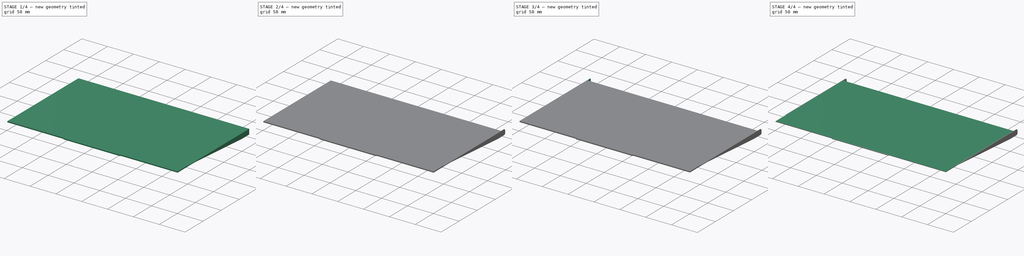
[diagram: build sequence overview — one tinted view per stage of 4, left to right]
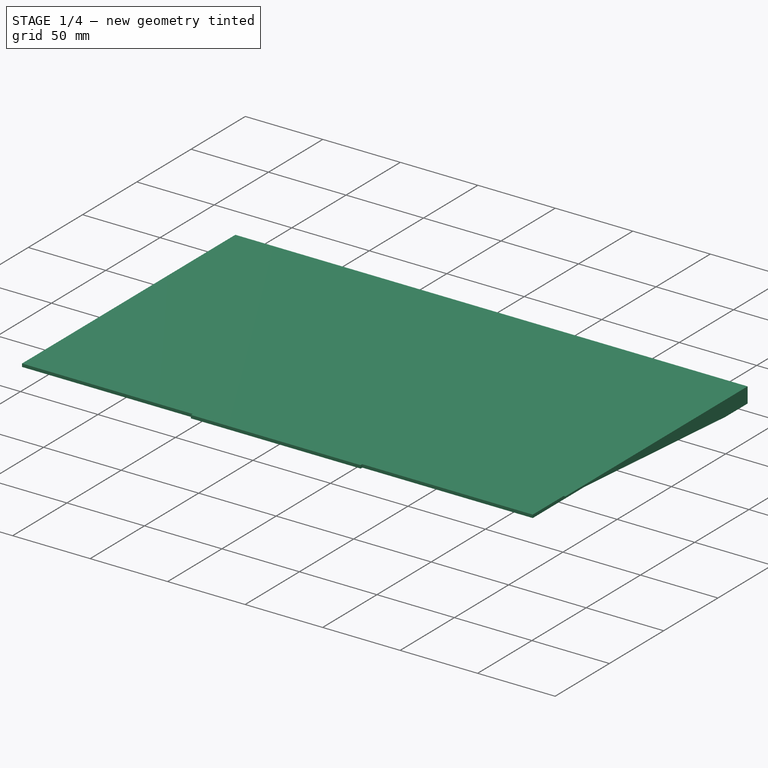
[diagram: stage 1 of 4 — iso view after this stage's code; geometry added in this stage tinted green]
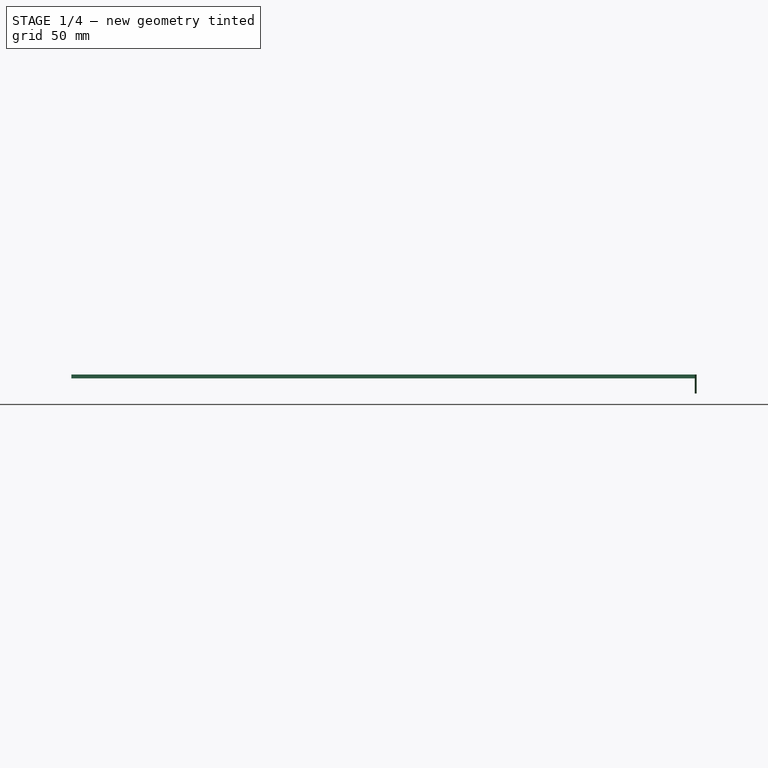
[diagram: stage 1 of 4 — front view after this stage's code; geometry added in this stage tinted green]
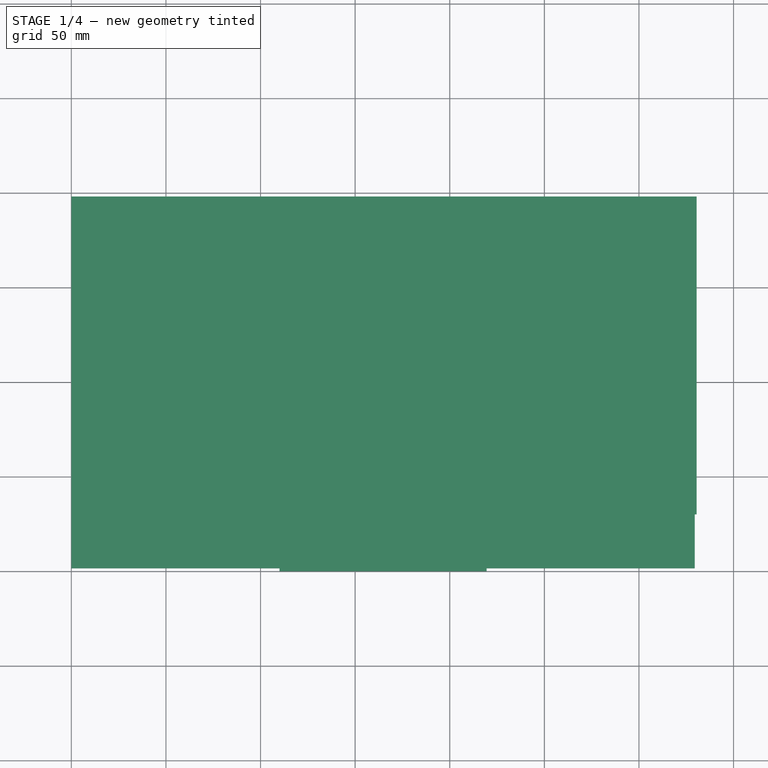
[diagram: stage 1 of 4 — top view after this stage's code; geometry added in this stage tinted green]
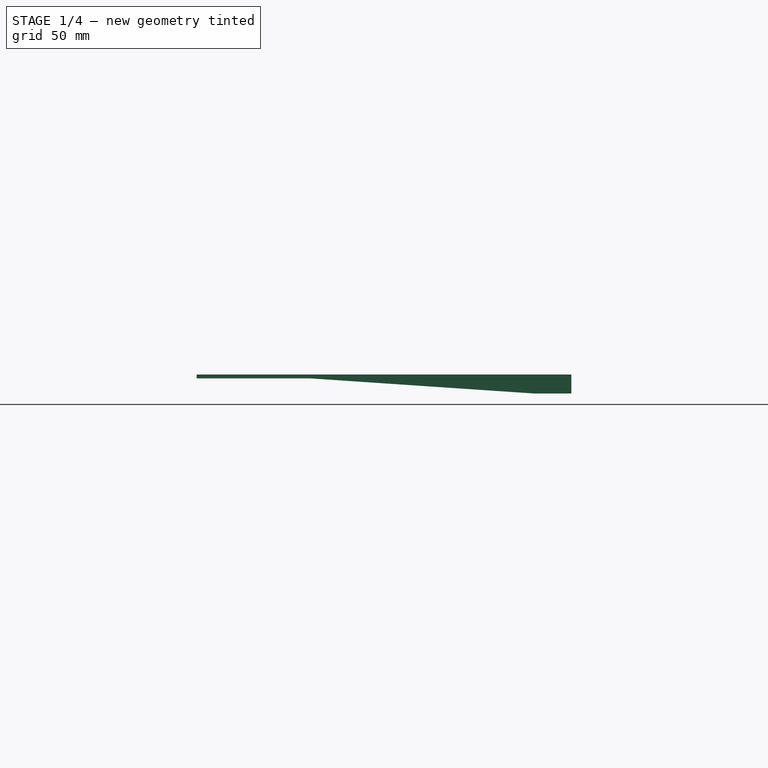
[diagram: stage 1 of 4 — right view after this stage's code; geometry added in this stage tinted green]
FCSTD DOCUMENT  (FreeCAD 0.18.4R)
Label: monitor_cradle_cover
License: All rights reserved
LicenseURL: http://en.wikipedia.org/wiki/All_rights_reserved
objects: Sketcher::SketchObject×8, PartDesign::Pad×5, PartDesign::Fillet×4, PartDesign::Pocket×2, PartDesign::Body×1
note: 27 computed .brp shape members not serialized (recipe doc carries the construction recipe); baked Part::Feature solids carry a one-line shape summary decoded from their .brp

FEATURE [Sketcher::SketchObject] Sketch
  MapMode = 5
  Support = -> [XY_Plane]
  sketch-geometry (4):
    g0: LineSegment StartX=0 StartY=0 StartZ=0 EndX=329.5 EndY=0 EndZ=0
    g1: LineSegment StartX=329.5 StartY=0 StartZ=0 EndX=329.5 EndY=198 EndZ=0
    g2: LineSegment StartX=329.5 StartY=198 StartZ=0 EndX=0 EndY=198 EndZ=0
    g3: LineSegment StartX=0 StartY=198 StartZ=0 EndX=0 EndY=0 EndZ=0
  constraints (11):
    c: Coincident(g0,g1)
    c: Coincident(g1,g2)
    c: Coincident(g2,g3)
    c: Coincident(g3,g0)
    c: Horizontal(g0)
    c: Horizontal(g2)
    c: Vertical(g1)
    c: Vertical(g3)
    c: DistanceX(g2,g2) = 329.5
    c: DistanceY(g3,g3) = 198
    c: Coincident(g0,g-1)
FEATURE [PartDesign::Pad] Pad
  Length = 2
  Length2 = 100
  Profile = -> Sketch
  Type = 0
FEATURE [Sketcher::SketchObject] Sketch001
  MapMode = 5
  Placement = pos=(329.5,0,0) rot=(0.57735,0.57735,0.57735;2.0944rad)
  Support = -> [Pad]
FEATURE [Sketcher::SketchObject] Sketch002
  ExternalGeometry = -> [Pad]
  MapMode = 5
  Placement = pos=(0,0,2) rot=(0,0,1;0rad)
  Support = -> [Pad]
  sketch-geometry (8):
    g0: LineSegment StartX=0 StartY=1.5 StartZ=0 EndX=110 EndY=1.5 EndZ=0
    g1: LineSegment StartX=110 StartY=1.5 StartZ=0 EndX=110 EndY=0 EndZ=0
    g2: LineSegment StartX=110 StartY=0 StartZ=0 EndX=0 EndY=0 EndZ=0
    g3: LineSegment StartX=0 StartY=0 StartZ=0 EndX=0 EndY=1.5 EndZ=0
    g4: LineSegment StartX=219.5 StartY=1.5 StartZ=0 EndX=329.5 EndY=1.5 EndZ=0
    g5: LineSegment StartX=329.5 StartY=1.5 StartZ=0 EndX=329.5 EndY=0 EndZ=0
    g6: LineSegment StartX=329.5 StartY=0 StartZ=0 EndX=219.5 EndY=0 EndZ=0
    g7: LineSegment StartX=219.5 StartY=0 StartZ=0 EndX=219.5 EndY=1.5 EndZ=0
  constraints (22):
    c: Coincident(g0,g1)
    c: Coincident(g1,g2)
    c: Coincident(g2,g3)
    c: Coincident(g3,g0)
    c: Horizontal(g0)
    c: Horizontal(g2)
    c: Vertical(g1)
    c: Vertical(g3)
    c: DistanceX(g0,g0) = 110
    c: DistanceY(g3,g3) = 1.5
    c: Coincident(g2,g-1)
    c: Coincident(g4,g5)
    c: Coincident(g5,g6)
    c: Coincident(g6,g7)
    c: Coincident(g7,g4)
    c: Horizontal(g4)
    c: Horizontal(g6)
    c: Vertical(g5)
    c: Vertical(g7)
    c: DistanceX(g4,g4) = 110
    c: DistanceY(g7,g7) = 1.5
    c: Coincident(g5,g-4)
FEATURE [PartDesign::Pocket] Pocket
  BaseFeature = -> Pad
  Length = 5
  Length2 = 100
  Profile = -> Sketch002
  Type = 1
FEATURE [Sketcher::SketchObject] Sketch003  label="Right Side"
  ExternalGeometry = -> [Pocket]
  MapMode = 5
  Placement = pos=(329.5,0,0) rot=(0.57735,0.57735,0.57735;2.0944rad)
  Support = -> [Pocket]
  sketch-geometry (4):
    g0: LineSegment StartX=198 StartY=2 StartZ=0 EndX=198 EndY=-8 EndZ=0
    g1: LineSegment StartX=198 StartY=-8 StartZ=0 EndX=178 EndY=-8 EndZ=0
    g2: LineSegment StartX=198 StartY=2 StartZ=0 EndX=30 EndY=2 EndZ=0
    g3: LineSegment StartX=30 StartY=2 StartZ=0 EndX=178 EndY=-8 EndZ=0
  constraints (11):
    c: Coincident(g0,g1)
    c: Horizontal(g1)
    c: Coincident(g2,g3)
    c: Horizontal(g2)
    c: Distance(g2) = 168
    c: Coincident(g3,g1)
    c: Distance(g0) = 10
    c: Distance(g1) = 20
    c: Coincident(g2,g0)
    c: Coincident(g0,g-4)
    c: Perpendicular(g1,g0)
FEATURE [PartDesign::Pad] Pad001
  BaseFeature = -> Pocket
  Length = 1
  Length2 = 100
  Profile = -> Sketch003
  Type = 0
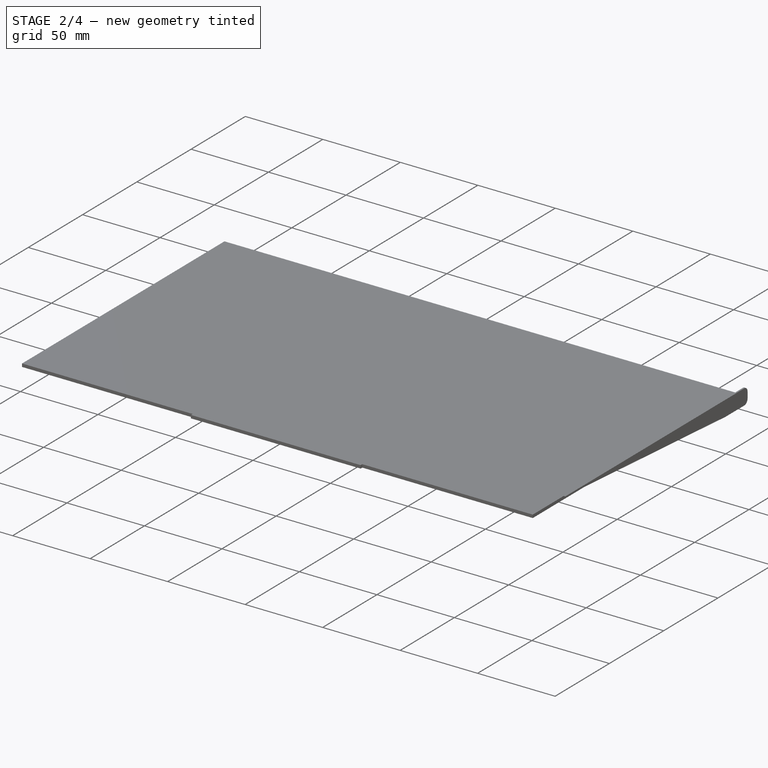
[diagram: stage 2 of 4 — iso view after this stage's code; geometry added in this stage tinted green]
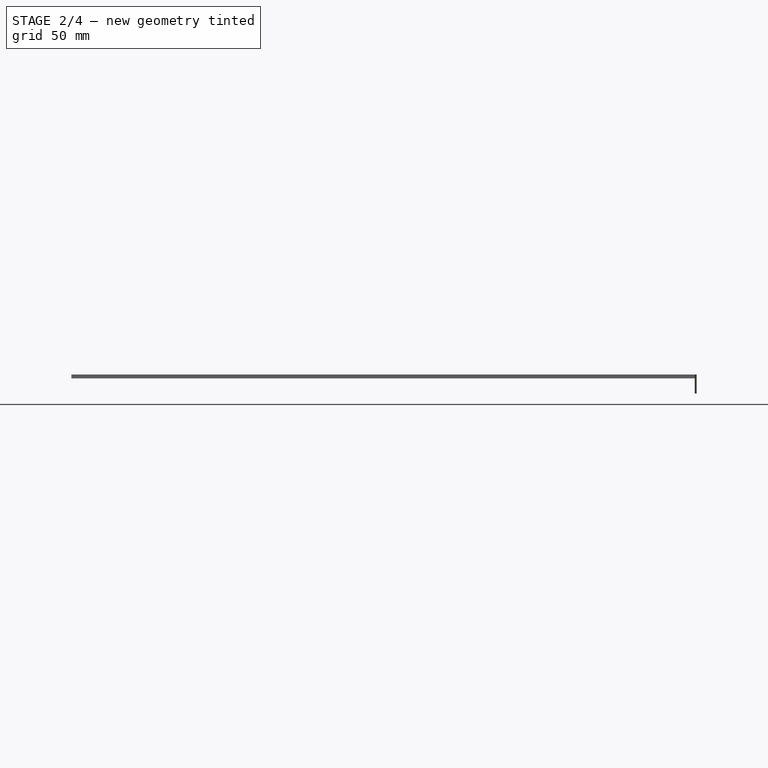
[diagram: stage 2 of 4 — front view after this stage's code; geometry added in this stage tinted green]
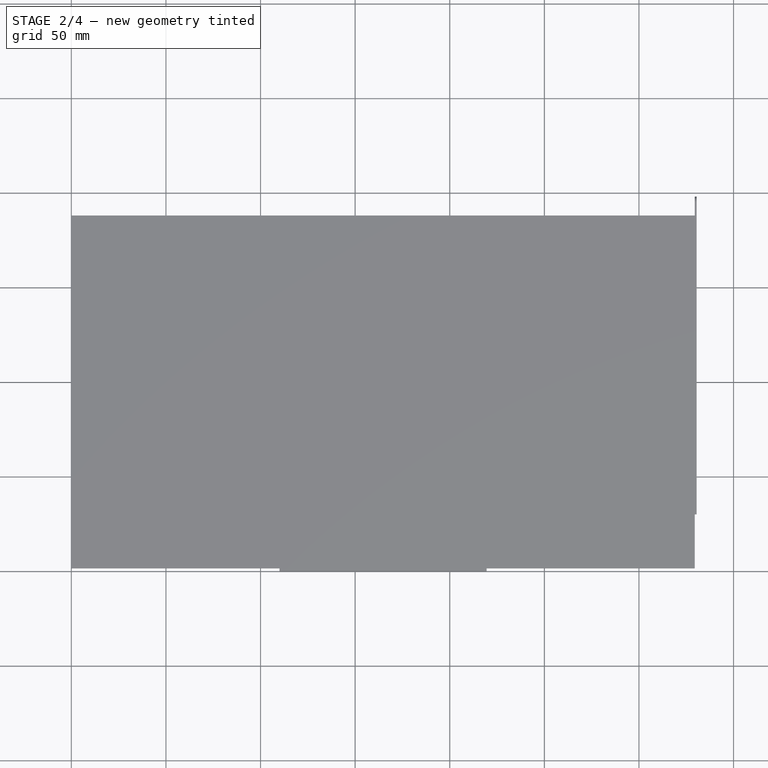
[diagram: stage 2 of 4 — top view after this stage's code; geometry added in this stage tinted green]
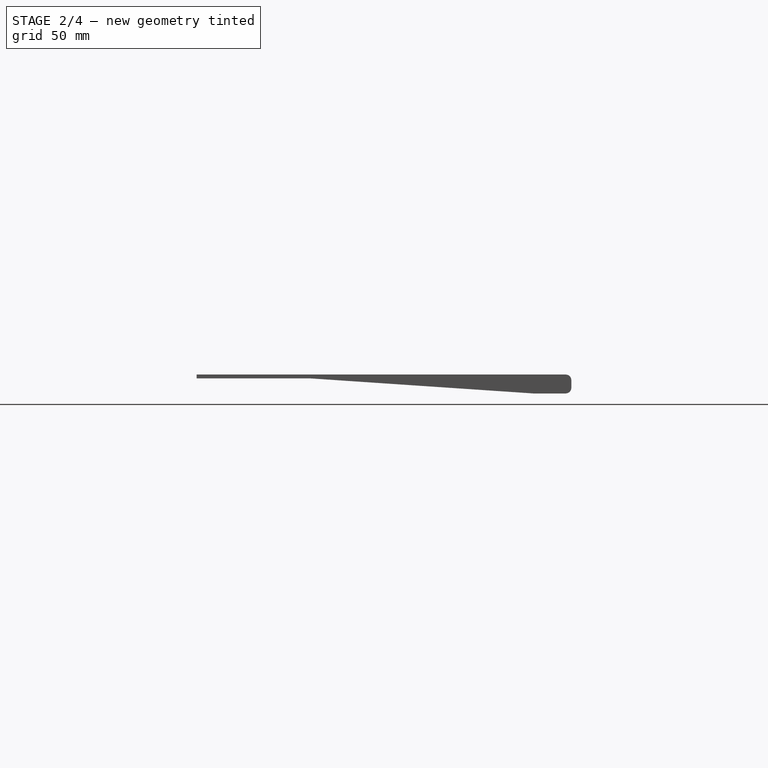
[diagram: stage 2 of 4 — right view after this stage's code; geometry added in this stage tinted green]
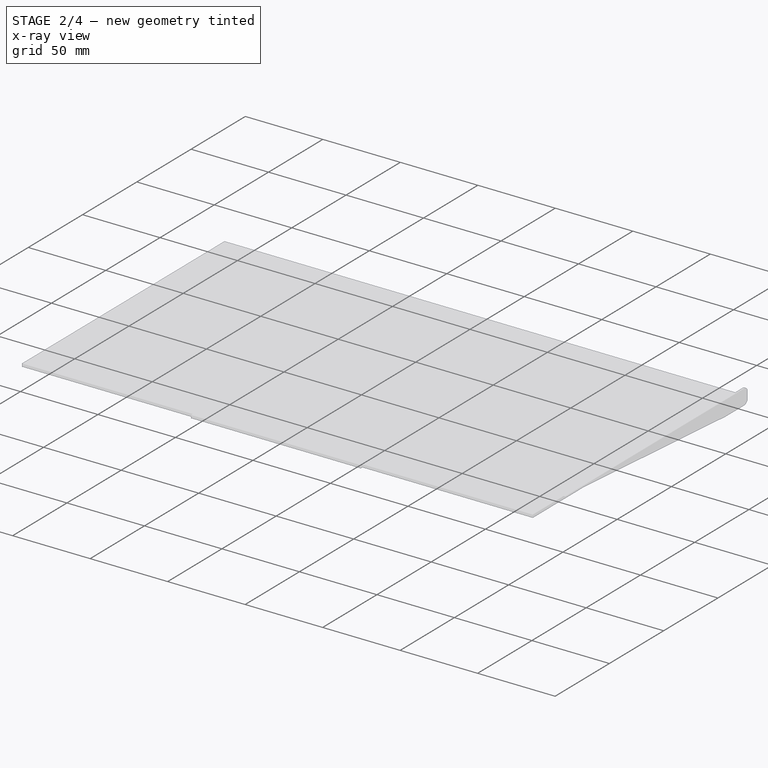
[diagram: stage 2 of 4 — x-ray composite at the iso view; earlier geometry ghosted, this stage's added geometry solid]
FEATURE [PartDesign::Fillet] Fillet
  Base = -> Pad001 [Edge34]
  BaseFeature = -> Pad001
  Radius = 3
FEATURE [Sketcher::SketchObject] Sketch004
  ExternalGeometry = -> [Fillet]
  MapMode = 5
  Placement = pos=(0,0,2) rot=(0,0,1;0rad)
  Support = -> [Fillet]
  sketch-geometry (4):
    g0: LineSegment StartX=0 StartY=198 StartZ=0 EndX=329.5 EndY=198 EndZ=0
    g1: LineSegment StartX=329.5 StartY=198 StartZ=0 EndX=329.5 EndY=188 EndZ=0
    g2: LineSegment StartX=329.5 StartY=188 StartZ=0 EndX=0 EndY=188 EndZ=0
    g3: LineSegment StartX=0 StartY=188 StartZ=0 EndX=0 EndY=198 EndZ=0
  constraints (11):
    c: Coincident(g0,g1)
    c: Coincident(g1,g2)
    c: Coincident(g2,g3)
    c: Coincident(g3,g0)
    c: Horizontal(g0)
    c: Horizontal(g2)
    c: Vertical(g1)
    c: Vertical(g3)
    c: Distance(g3) = 10
    c: Coincident(g0,g-4)
    c: Distance(g0) = 329.5
FEATURE [PartDesign::Pocket] Pocket001
  BaseFeature = -> Fillet
  Length = 5
  Length2 = 100
  Profile = -> Sketch004
  Type = 1
FEATURE [PartDesign::Fillet] Fillet001
  Base = -> Pocket001 [Edge11]
  BaseFeature = -> Pocket001
  Radius = 3
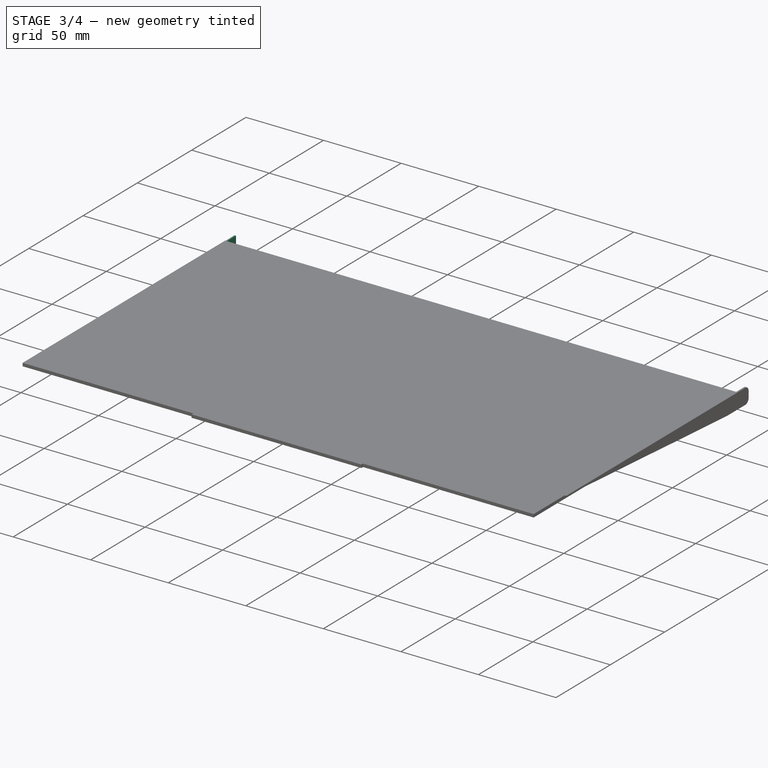
[diagram: stage 3 of 4 — iso view after this stage's code; geometry added in this stage tinted green]
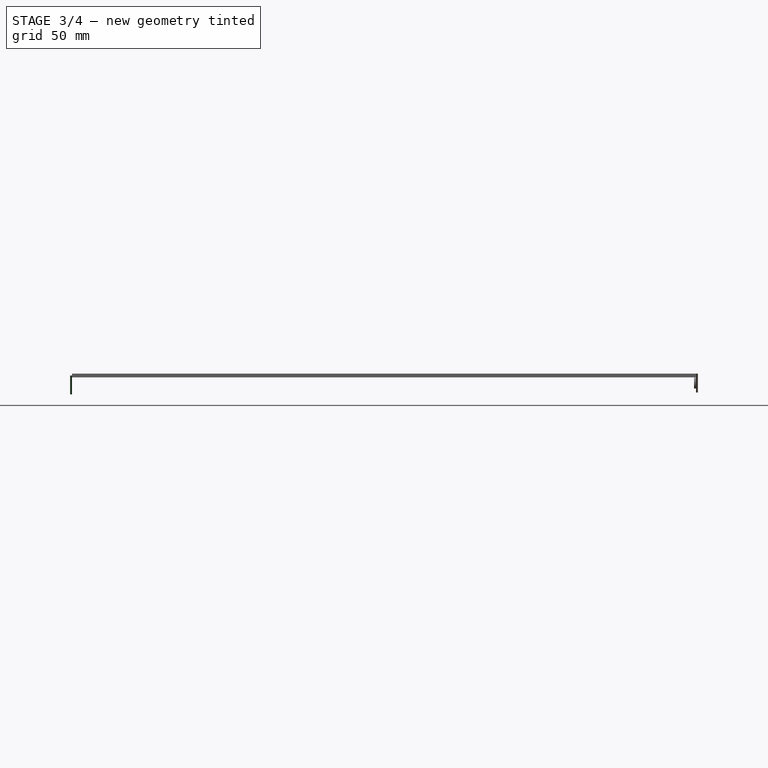
[diagram: stage 3 of 4 — front view after this stage's code; geometry added in this stage tinted green]
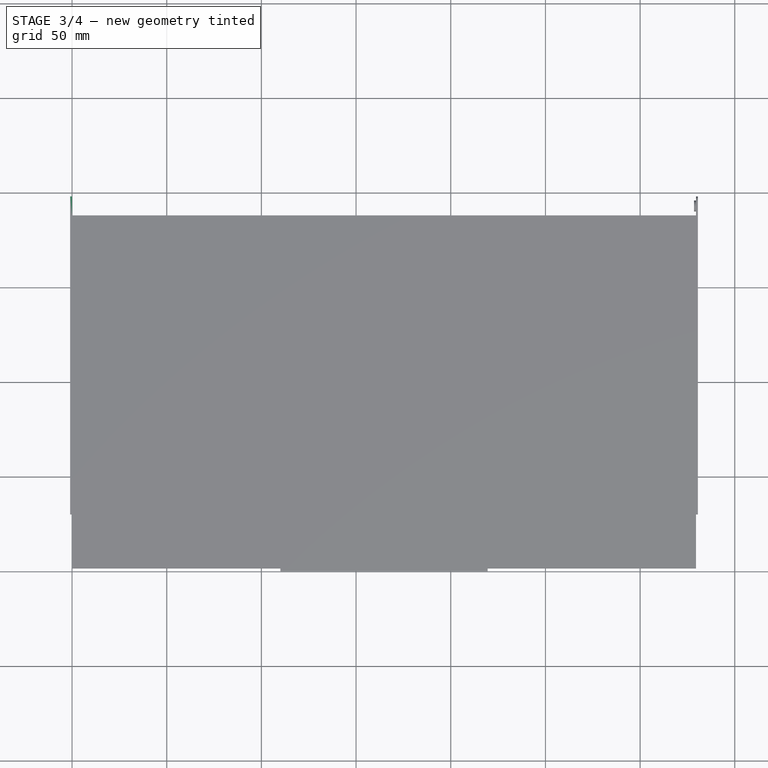
[diagram: stage 3 of 4 — top view after this stage's code; geometry added in this stage tinted green]
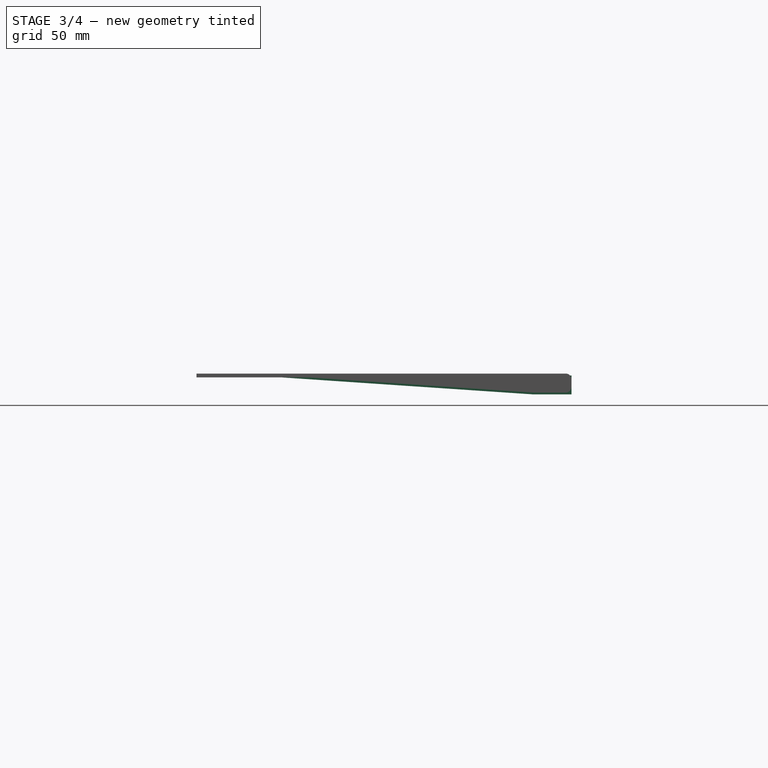
[diagram: stage 3 of 4 — right view after this stage's code; geometry added in this stage tinted green]
FEATURE [Sketcher::SketchObject] Sketch005
  ExternalGeometry = -> [Fillet001]
  MapMode = 5
  Placement = pos=(329.5,0,0) rot=(0.57735,-0.57735,-0.57735;2.0944rad)
  Support = -> [Fillet001]
  sketch-geometry (1):
    g0: Circle CenterX=-193 CenterY=-3 CenterZ=0 NormalX=0 NormalY=0 NormalZ=1 AngleXU=0 Radius=2.9
  constraints (3):
    c: Radius(g0) = 2.9
    c: DistanceY(g0,g-3) = 5
    c: DistanceX(g-6,g0) = 5
FEATURE [PartDesign::Pad] Pad002
  BaseFeature = -> Fillet001
  Length = 1
  Length2 = 100
  Profile = -> Sketch005
  Type = 0
FEATURE [Sketcher::SketchObject] CopyMirroredSketch  label="Left Side"
  Placement = pos=(0,0,0) rot=(0.57735,-0.57735,-0.57735;2.0944rad)
  sketch-geometry (4):
    g0: LineSegment StartX=-198 StartY=1 StartZ=0 EndX=-198 EndY=-9 EndZ=0
    g1: LineSegment StartX=-198 StartY=-9 StartZ=0 EndX=-178 EndY=-9 EndZ=0
    g2: LineSegment StartX=-198 StartY=1 StartZ=0 EndX=-30 EndY=1 EndZ=0
    g3: LineSegment StartX=-30 StartY=1 StartZ=0 EndX=-178 EndY=-9 EndZ=0
  constraints (10):
    c: Coincident(g0,g1)
    c: Horizontal(g1)
    c: Coincident(g2,g3)
    c: Horizontal(g2)
    c: Distance(g2) = 168
    c: Coincident(g3,g1)
    c: Distance(g0) = 10
    c: Distance(g1) = 20
    c: Coincident(g2,g0)
    c: Perpendicular(g1,g0)
FEATURE [PartDesign::Pad] Pad003
  BaseFeature = -> Pad002
  Length = 1
  Length2 = 100
  Profile = -> CopyMirroredSketch
  Type = 0
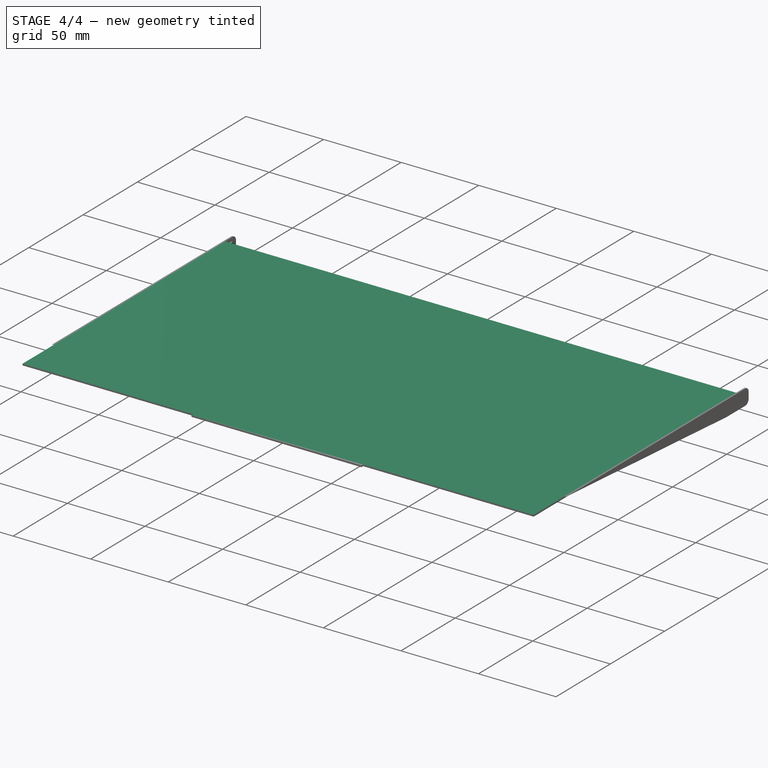
[diagram: stage 4 of 4 — iso view after this stage's code; geometry added in this stage tinted green]
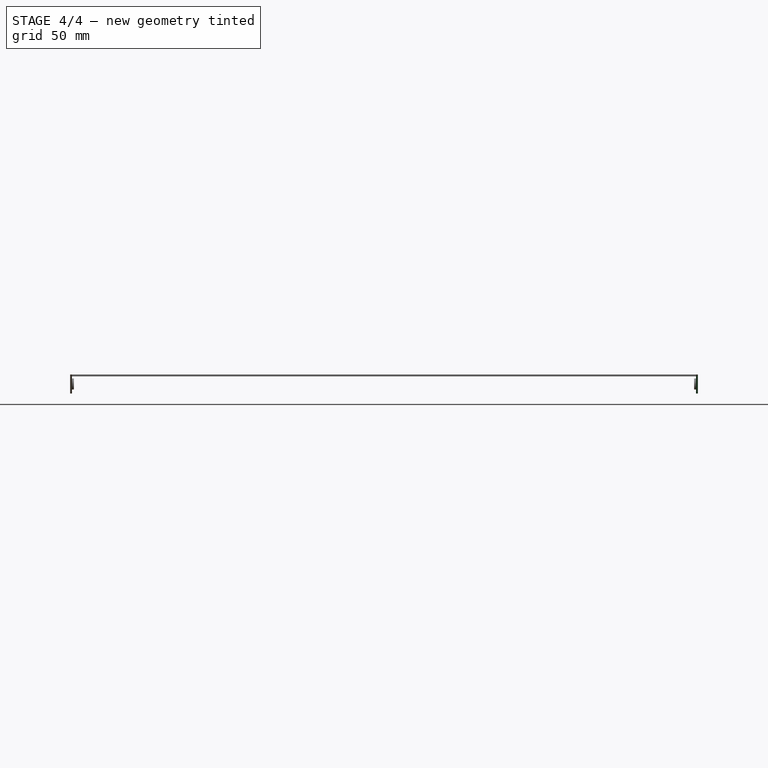
[diagram: stage 4 of 4 — front view after this stage's code; geometry added in this stage tinted green]
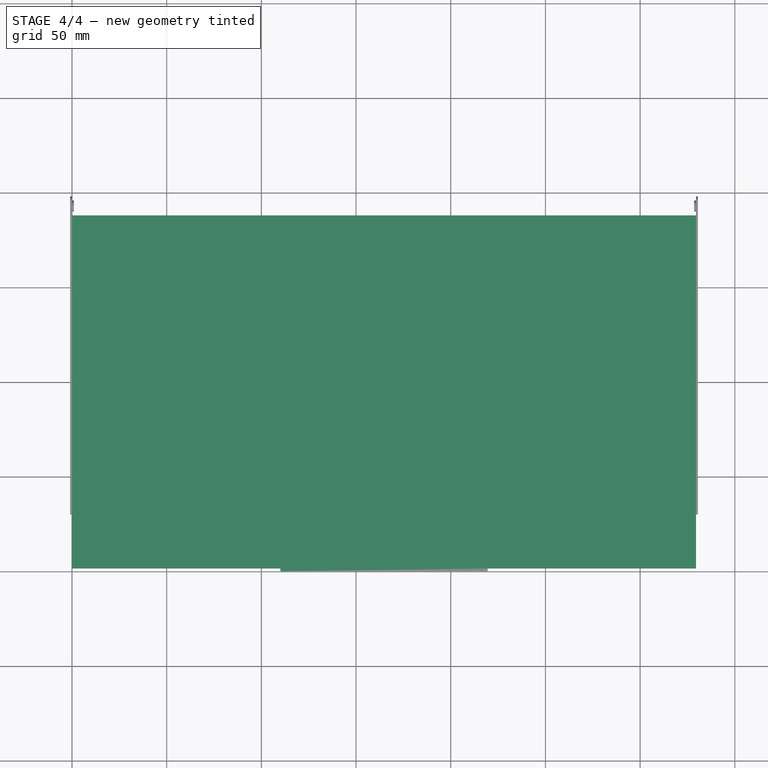
[diagram: stage 4 of 4 — top view after this stage's code; geometry added in this stage tinted green]
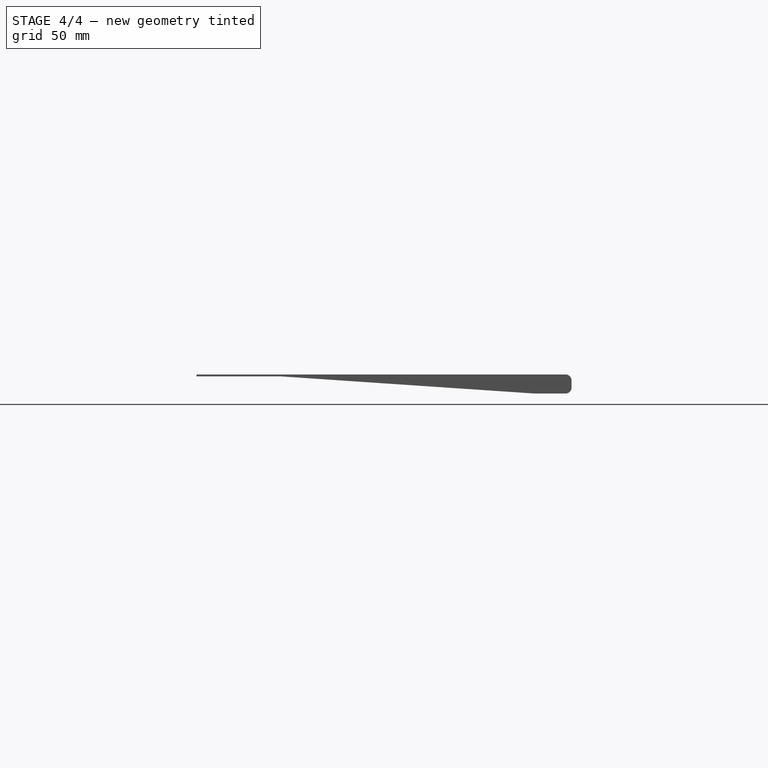
[diagram: stage 4 of 4 — right view after this stage's code; geometry added in this stage tinted green]
FEATURE [Sketcher::SketchObject] Sketch006
  ExternalGeometry = -> [Pad003]
  MapMode = 5
  Placement = pos=(0,0,0) rot=(0.57735,-0.57735,-0.57735;2.0944rad)
  Support = -> [Pad003]
  sketch-geometry (1):
    g0: Circle CenterX=-193 CenterY=-4 CenterZ=0 NormalX=0 NormalY=0 NormalZ=1 AngleXU=0 Radius=2.9
  constraints (3):
    c: Radius(g0) = 2.9
    c: DistanceY(g0,g-4) = 5
    c: DistanceX(g0,g-4) = 5
FEATURE [PartDesign::Pad] Pad004
  BaseFeature = -> Pad003
  Length = 1
  Length2 = 100
  Profile = -> Sketch006
  Type = 0
FEATURE [PartDesign::Fillet] Fillet002
  Base = -> Pad004 [Edge64]
  BaseFeature = -> Pad004
  Radius = 3
FEATURE [PartDesign::Fillet] Fillet003
  Base = -> Fillet002 [Edge10]
  BaseFeature = -> Fillet002
  Radius = 3
FEATURE [PartDesign::Body] Body
  Group = -> [Sketch,Pad,Sketch001,Sketch002,Pocket,Sketch003,Pad001,Fillet,Sketch004,Pocket001,Fillet001,Sketch005,Pad002,Pad003,Sketch006,Pad004,Fillet002,Fillet003]
  Origin = -> Origin
  Tip = -> Fillet003
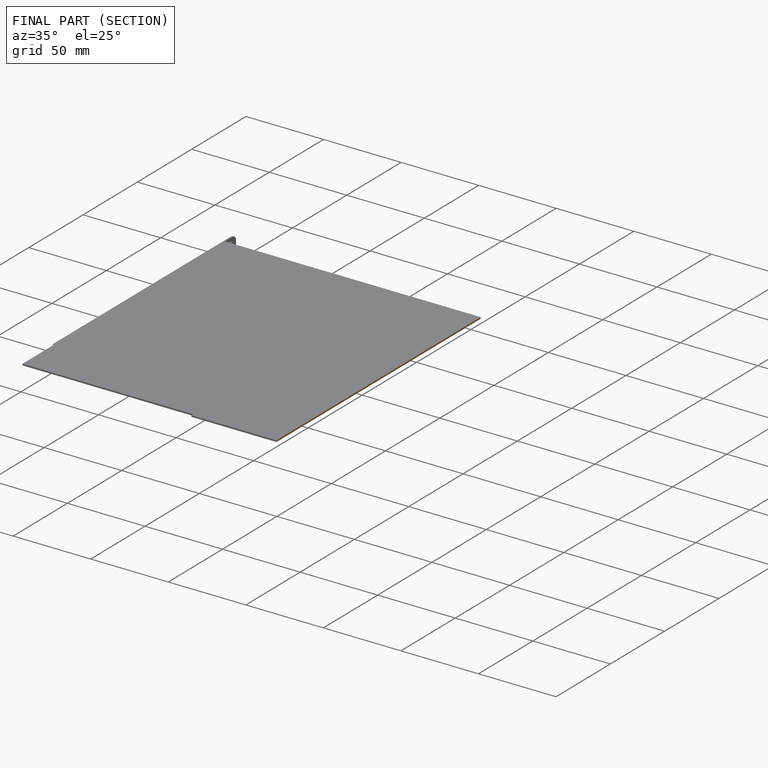
[diagram: finished part — half-section view (interior)]
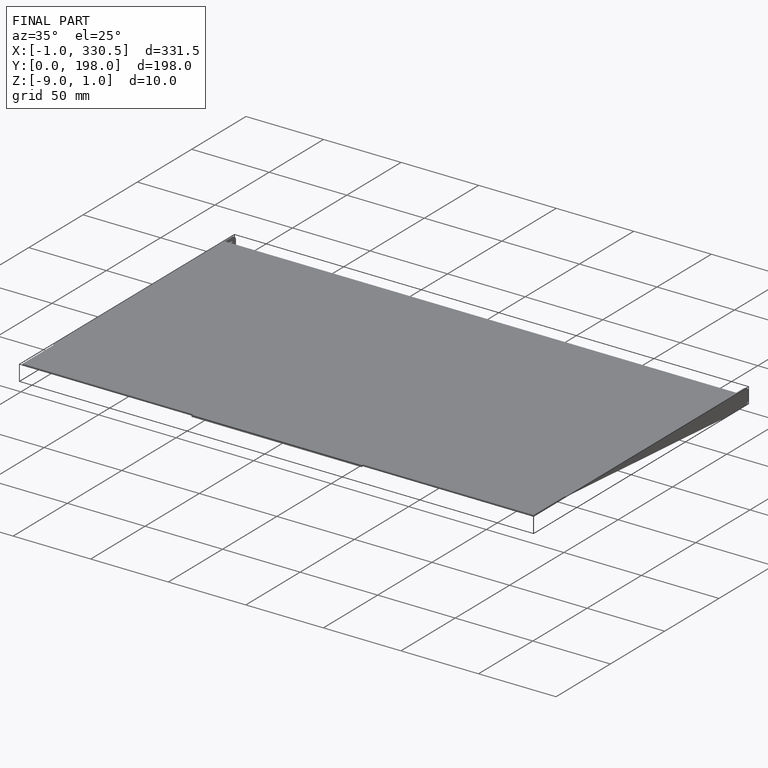
[diagram: finished part — iso view with bounding-box wireframe]
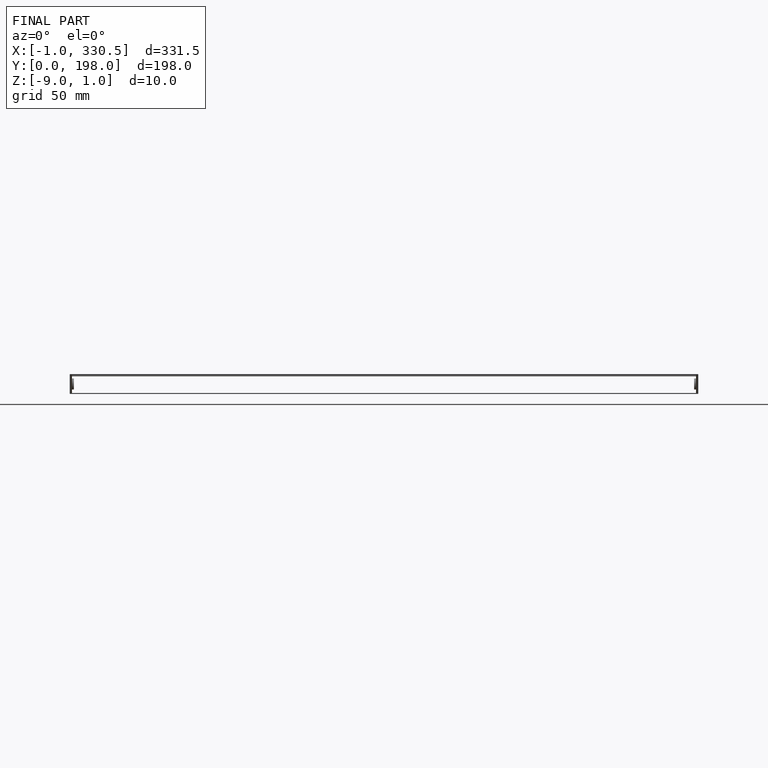
[diagram: finished part — front view with bounding-box wireframe]
